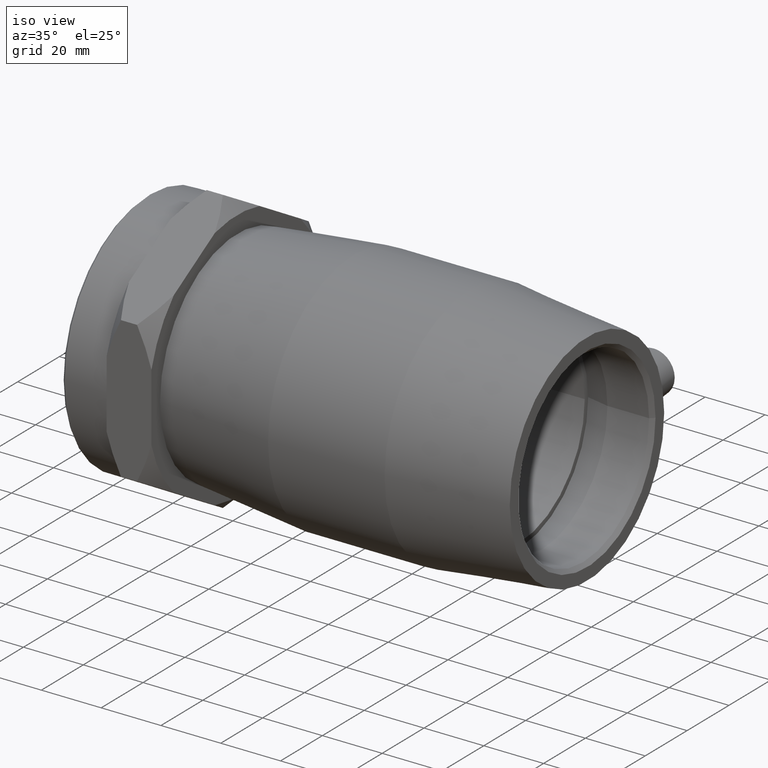
[diagram: clean part render]
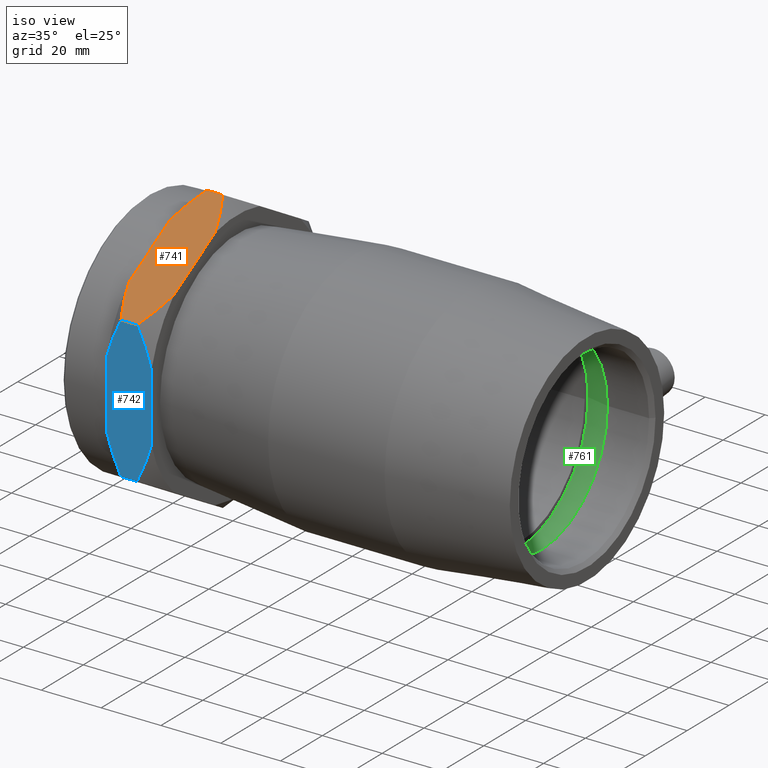
[diagram: same view with three faces highlighted in distinct colors, each labeled with its STEP entity id]
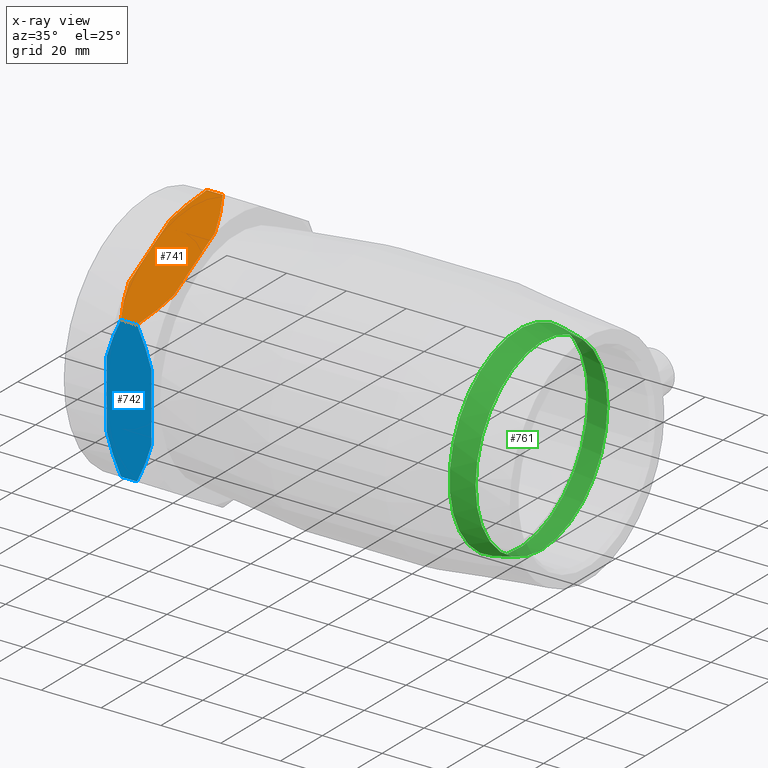
[diagram: x-ray of the same camera — body ghosted, the three highlighted faces saturated]
A machine part, iso view with three faces highlighted in distinct colors.
The next image is the same camera in x-ray (body ghosted, the three faces saturated) — at least one of them is partly hidden behind the body in this view.
Their STEP definitions:

[orange] entity #741 — the highlighted planar face has unit normal (0, -0.5, 0.866).
#22=LINE('',#1270,#46);
#23=LINE('',#1272,#47);
#34=LINE('',#1288,#58);
#37=LINE('',#1292,#61);
#38=LINE('',#1293,#62);
#46=VECTOR('',#974,11.3526737567526);
#47=VECTOR('',#977,11.3526737567526);
#58=VECTOR('',#998,5.40000000000001);
#61=VECTOR('',#1003,5.39999999999999);
#62=VECTOR('',#1004,22.7053475135052);
#67=(
BOUNDED_CURVE()
B_SPLINE_CURVE(2,(#1144,#1145,#1146),.UNSPECIFIED.,.F.,.F.)
B_SPLINE_CURVE_WITH_KNOTS((3,3),(0.,1.32378358968891),.UNSPECIFIED.)
CURVE()
GEOMETRIC_REPRESENTATION_ITEM()
RATIONAL_B_SPLINE_CURVE((1.,1.00952557580621,1.))
REPRESENTATION_ITEM('')
);
#72=(
BOUNDED_CURVE()
B_SPLINE_CURVE(2,(#1170,#1171,#1172),.UNSPECIFIED.,.F.,.F.)
B_SPLINE_CURVE_WITH_KNOTS((3,3),(0.,1.32378358968891),.UNSPECIFIED.)
CURVE()
GEOMETRIC_REPRESENTATION_ITEM()
RATIONAL_B_SPLINE_CURVE((1.,1.00952557580619,1.))
REPRESENTATION_ITEM('')
);
#78=(
BOUNDED_CURVE()
B_SPLINE_CURVE(2,(#1204,#1205,#1206),.UNSPECIFIED.,.F.,.F.)
B_SPLINE_CURVE_WITH_KNOTS((3,3),(0.,1.32378358968891),.UNSPECIFIED.)
CURVE()
GEOMETRIC_REPRESENTATION_ITEM()
RATIONAL_B_SPLINE_CURVE((1.,1.00952557580625,1.))
REPRESENTATION_ITEM('')
);
#79=(
BOUNDED_CURVE()
B_SPLINE_CURVE(2,(#1210,#1211,#1212),.UNSPECIFIED.,.F.,.F.)
B_SPLINE_CURVE_WITH_KNOTS((3,3),(0.,1.3237835896889),.UNSPECIFIED.)
CURVE()
GEOMETRIC_REPRESENTATION_ITEM()
RATIONAL_B_SPLINE_CURVE((1.,1.00952557580623,1.))
REPRESENTATION_ITEM('')
);
#110=PLANE('',#824);
#182=FACE_OUTER_BOUND('',#244,.T.);
#244=EDGE_LOOP('',(#610,#611,#612,#613,#614,#615,#616,#617,#618));
#349=VERTEX_POINT('',#1125);
#354=VERTEX_POINT('',#1142);
#355=VERTEX_POINT('',#1143);
#360=VERTEX_POINT('',#1164);
#362=VERTEX_POINT('',#1169);
#370=VERTEX_POINT('',#1198);
#371=VERTEX_POINT('',#1202);
#372=VERTEX_POINT('',#1208);
#373=VERTEX_POINT('',#1209);
#425=EDGE_CURVE('',#354,#355,#67,.T.);
#432=EDGE_CURVE('',#362,#360,#72,.T.);
#442=EDGE_CURVE('',#370,#371,#78,.T.);
#443=EDGE_CURVE('',#372,#373,#79,.T.);
#463=EDGE_CURVE('',#349,#355,#22,.T.);
#464=EDGE_CURVE('',#362,#349,#23,.T.);
#475=EDGE_CURVE('',#373,#354,#34,.T.);
#478=EDGE_CURVE('',#370,#360,#37,.T.);
#479=EDGE_CURVE('',#371,#372,#38,.T.);
#610=ORIENTED_EDGE('',*,*,#425,.T.);
#611=ORIENTED_EDGE('',*,*,#463,.F.);
#612=ORIENTED_EDGE('',*,*,#464,.F.);
#613=ORIENTED_EDGE('',*,*,#432,.T.);
#614=ORIENTED_EDGE('',*,*,#478,.F.);
#615=ORIENTED_EDGE('',*,*,#442,.T.);
#616=ORIENTED_EDGE('',*,*,#479,.T.);
#617=ORIENTED_EDGE('',*,*,#443,.T.);
#618=ORIENTED_EDGE('',*,*,#475,.T.);
#741=ADVANCED_FACE('',(#182),#110,.T.);
#824=AXIS2_PLACEMENT_3D('',#1291,#1001,#1002);
#974=DIRECTION('',(0.,0.866025403784438,0.500000000000002));
#977=DIRECTION('',(0.,0.866025403784438,0.500000000000002));
#998=DIRECTION('',(-1.,0.,0.));
#1001=DIRECTION('center_axis',(0.,-0.500000000000002,0.866025403784438));
#1002=DIRECTION('ref_axis',(0.,0.866025403784438,0.500000000000001));
#1003=DIRECTION('',(-1.,0.,0.));
#1004=DIRECTION('',(0.,0.866025403784438,0.500000000000002));
#1125=CARTESIAN_POINT('',(-73.5,-20.5000000000001,35.507041555162));
#1142=CARTESIAN_POINT('',(-68.7,0.,47.3427220735493));
#1143=CARTESIAN_POINT('',(-73.5,-10.6682961257754,41.1833784335383));
#1144=CARTESIAN_POINT('Ctrl Pts',(-68.7,-9.58998513862673E-14,47.3427220735493));
#1145=CARTESIAN_POINT('Ctrl Pts',(-71.9441303135502,-5.61899852944334,44.0985917599991));
#1146=CARTESIAN_POINT('Ctrl Pts',(-73.5,-10.6682961257754,41.1833784335383));
#1164=CARTESIAN_POINT('',(-68.7,-41.,23.6713610367746));
#1169=CARTESIAN_POINT('',(-73.5,-30.3317038742247,29.8307046767857));
#1170=CARTESIAN_POINT('Ctrl Pts',(-73.5,-30.3317038742247,29.8307046767856));
#1171=CARTESIAN_POINT('Ctrl Pts',(-71.9441303135502,-35.3810014705568,26.9154913503248));
#1172=CARTESIAN_POINT('Ctrl Pts',(-68.7,-41.,23.6713610367746));
#1198=CARTESIAN_POINT('',(-63.3,-41.,23.6713610367746));
#1202=CARTESIAN_POINT('',(-58.5,-30.3317038742247,29.8307046767857));
#1204=CARTESIAN_POINT('Ctrl Pts',(-63.3,-41.,23.6713610367746));
#1205=CARTESIAN_POINT('Ctrl Pts',(-60.0558696864498,-35.3810014705568,26.9154913503248));
#1206=CARTESIAN_POINT('Ctrl Pts',(-58.5,-30.3317038742247,29.8307046767856));
#1208=CARTESIAN_POINT('',(-58.5,-10.6682961257754,41.1833784335383));
#1209=CARTESIAN_POINT('',(-63.3,0.,47.3427220735493));
#1210=CARTESIAN_POINT('Ctrl Pts',(-58.5,-10.6682961257754,41.1833784335383));
#1211=CARTESIAN_POINT('Ctrl Pts',(-60.0558696864498,-5.61899852944339,44.0985917599991));
#1212=CARTESIAN_POINT('Ctrl Pts',(-63.3,-1.05255934448342E-13,47.3427220735493));
#1270=CARTESIAN_POINT('',(-73.5,-41.,23.6713610367746));
#1272=CARTESIAN_POINT('',(-73.5,-41.,23.6713610367746));
#1288=CARTESIAN_POINT('',(-58.5,-8.81015690508994E-14,47.3427220735493));
#1291=CARTESIAN_POINT('Origin',(-58.5,-41.,23.6713610367746));
#1292=CARTESIAN_POINT('',(-58.5,-41.,23.6713610367746));
#1293=CARTESIAN_POINT('',(-58.5,-41.,23.6713610367746));

[blue] entity #742 — the highlighted planar face has unit normal (0, -1, -0).
#24=LINE('',#1273,#48);
#27=LINE('',#1277,#51);
#33=LINE('',#1286,#57);
#37=LINE('',#1292,#61);
#39=LINE('',#1295,#63);
#48=VECTOR('',#978,11.3526737567526);
#51=VECTOR('',#983,5.39999999999999);
#57=VECTOR('',#995,11.3526737567526);
#61=VECTOR('',#1003,5.39999999999999);
#63=VECTOR('',#1007,22.7053475135052);
#71=(
BOUNDED_CURVE()
B_SPLINE_CURVE(2,(#1166,#1167,#1168),.UNSPECIFIED.,.F.,.F.)
B_SPLINE_CURVE_WITH_KNOTS((3,3),(0.,1.3237835896889),.UNSPECIFIED.)
CURVE()
GEOMETRIC_REPRESENTATION_ITEM()
RATIONAL_B_SPLINE_CURVE((1.,1.00952557580623,1.))
REPRESENTATION_ITEM('')
);
#73=(
BOUNDED_CURVE()
B_SPLINE_CURVE(2,(#1177,#1178,#1179),.UNSPECIFIED.,.F.,.F.)
B_SPLINE_CURVE_WITH_KNOTS((3,3),(0.,1.3237835896889),.UNSPECIFIED.)
CURVE()
GEOMETRIC_REPRESENTATION_ITEM()
RATIONAL_B_SPLINE_CURVE((1.,1.00952557580626,1.))
REPRESENTATION_ITEM('')
);
#77=(
BOUNDED_CURVE()
B_SPLINE_CURVE(2,(#1199,#1200,#1201),.UNSPECIFIED.,.F.,.F.)
B_SPLINE_CURVE_WITH_KNOTS((3,3),(0.,1.32378358968891),.UNSPECIFIED.)
CURVE()
GEOMETRIC_REPRESENTATION_ITEM()
RATIONAL_B_SPLINE_CURVE((1.,1.0095255758062,1.))
REPRESENTATION_ITEM('')
);
#83=(
BOUNDED_CURVE()
B_SPLINE_CURVE(2,(#1232,#1233,#1234),.UNSPECIFIED.,.F.,.F.)
B_SPLINE_CURVE_WITH_KNOTS((3,3),(0.,1.32378358968891),.UNSPECIFIED.)
CURVE()
GEOMETRIC_REPRESENTATION_ITEM()
RATIONAL_B_SPLINE_CURVE((1.,1.00952557580625,1.))
REPRESENTATION_ITEM('')
);
#111=PLANE('',#825);
#183=FACE_OUTER_BOUND('',#245,.T.);
#245=EDGE_LOOP('',(#619,#620,#621,#622,#623,#624,#625,#626,#627));
#348=VERTEX_POINT('',#1123);
#360=VERTEX_POINT('',#1164);
#361=VERTEX_POINT('',#1165);
#363=VERTEX_POINT('',#1175);
#364=VERTEX_POINT('',#1176);
#369=VERTEX_POINT('',#1197);
#370=VERTEX_POINT('',#1198);
#378=VERTEX_POINT('',#1230);
#379=VERTEX_POINT('',#1231);
#431=EDGE_CURVE('',#360,#361,#71,.T.);
#434=EDGE_CURVE('',#363,#364,#73,.T.);
#440=EDGE_CURVE('',#369,#370,#77,.T.);
#449=EDGE_CURVE('',#378,#379,#83,.T.);
#465=EDGE_CURVE('',#348,#361,#24,.T.);
#468=EDGE_CURVE('',#378,#364,#27,.T.);
#474=EDGE_CURVE('',#363,#348,#33,.T.);
#478=EDGE_CURVE('',#370,#360,#37,.T.);
#480=EDGE_CURVE('',#379,#369,#39,.T.);
#619=ORIENTED_EDGE('',*,*,#434,.T.);
#620=ORIENTED_EDGE('',*,*,#468,.F.);
#621=ORIENTED_EDGE('',*,*,#449,.T.);
#622=ORIENTED_EDGE('',*,*,#480,.T.);
#623=ORIENTED_EDGE('',*,*,#440,.T.);
#624=ORIENTED_EDGE('',*,*,#478,.T.);
#625=ORIENTED_EDGE('',*,*,#431,.T.);
#626=ORIENTED_EDGE('',*,*,#465,.F.);
#627=ORIENTED_EDGE('',*,*,#474,.F.);
#742=ADVANCED_FACE('',(#183),#111,.T.);
#825=AXIS2_PLACEMENT_3D('',#1294,#1005,#1006);
#978=DIRECTION('',(0.,-1.5008489259579E-15,1.));
#983=DIRECTION('',(-1.,0.,0.));
#995=DIRECTION('',(0.,-1.5008489259579E-15,1.));
#1003=DIRECTION('',(-1.,0.,0.));
#1005=DIRECTION('center_axis',(0.,-1.,-1.5008489259579E-15));
#1006=DIRECTION('ref_axis',(0.,-1.4210854715202E-15,1.));
#1007=DIRECTION('',(0.,-1.5008489259579E-15,1.));
#1123=CARTESIAN_POINT('',(-73.5,-41.,-6.21724893790088E-14));
#1164=CARTESIAN_POINT('',(-68.7,-41.,23.6713610367746));
#1165=CARTESIAN_POINT('',(-73.5,-41.,11.3526737567526));
#1166=CARTESIAN_POINT('Ctrl Pts',(-68.7,-41.,23.6713610367746));
#1167=CARTESIAN_POINT('Ctrl Pts',(-71.9441303135502,-41.,17.1831004096742));
#1168=CARTESIAN_POINT('Ctrl Pts',(-73.5,-41.,11.3526737567526));
#1175=CARTESIAN_POINT('',(-73.5,-41.,-11.3526737567527));
#1176=CARTESIAN_POINT('',(-68.7,-41.,-23.6713610367747));
#1177=CARTESIAN_POINT('Ctrl Pts',(-73.5,-41.,-11.3526737567527));
#1178=CARTESIAN_POINT('Ctrl Pts',(-71.9441303135502,-41.,-17.1831004096743));
#1179=CARTESIAN_POINT('Ctrl Pts',(-68.7,-41.,-23.6713610367747));
#1197=CARTESIAN_POINT('',(-58.5,-41.,11.3526737567526));
#1198=CARTESIAN_POINT('',(-63.3,-41.,23.6713610367746));
#1199=CARTESIAN_POINT('Ctrl Pts',(-58.5,-41.,11.3526737567525));
#1200=CARTESIAN_POINT('Ctrl Pts',(-60.0558696864498,-41.,17.1831004096742));
#1201=CARTESIAN_POINT('Ctrl Pts',(-63.3,-41.,23.6713610367746));
#1230=CARTESIAN_POINT('',(-63.3,-41.,-23.6713610367747));
#1231=CARTESIAN_POINT('',(-58.5,-41.,-11.3526737567527));
#1232=CARTESIAN_POINT('Ctrl Pts',(-63.3,-41.,-23.6713610367747));
#1233=CARTESIAN_POINT('Ctrl Pts',(-60.0558696864498,-41.,-17.1831004096743));
#1234=CARTESIAN_POINT('Ctrl Pts',(-58.5,-41.,-11.3526737567527));
#1273=CARTESIAN_POINT('',(-73.5,-41.,-23.6713610367747));
#1277=CARTESIAN_POINT('',(-58.5,-41.,-23.6713610367747));
#1286=CARTESIAN_POINT('',(-73.5,-41.,-23.6713610367747));
#1292=CARTESIAN_POINT('',(-58.5,-41.,23.6713610367746));
#1294=CARTESIAN_POINT('Origin',(-58.5,-41.,-23.6713610367747));
#1295=CARTESIAN_POINT('',(-58.5,-41.,-23.6713610367747));

[green] entity #761 — the highlighted conical surface has half-angle 12 deg.
#147=FACE_BOUND('',#281,.T.);
#202=FACE_OUTER_BOUND('',#280,.T.);
#280=EDGE_LOOP('',(#681));
#281=EDGE_LOOP('',(#682));
#294=CIRCLE('',#774,31.5);
#333=CIRCLE('',#860,33.1154298686922);
#339=VERTEX_POINT('',#1101);
#404=VERTEX_POINT('',#1416);
#410=EDGE_CURVE('',#339,#339,#294,.T.);
#499=EDGE_CURVE('',#404,#404,#333,.T.);
#681=ORIENTED_EDGE('',*,*,#499,.F.);
#682=ORIENTED_EDGE('',*,*,#410,.T.);
#710=CONICAL_SURFACE('',#859,32.3077149343461,12.);
#761=ADVANCED_FACE('',(#202,#147),#710,.F.);
#774=AXIS2_PLACEMENT_3D('',#1102,#881,#882);
#859=AXIS2_PLACEMENT_3D('',#1415,#1075,#1076);
#860=AXIS2_PLACEMENT_3D('',#1417,#1077,#1078);
#881=DIRECTION('center_axis',(1.,0.,0.));
#882=DIRECTION('ref_axis',(0.,0.,-1.));
#1075=DIRECTION('center_axis',(-1.,0.,0.));
#1076=DIRECTION('ref_axis',(0.,1.,0.));
#1077=DIRECTION('center_axis',(1.,0.,0.));
#1078=DIRECTION('ref_axis',(0.,0.,-1.));
#1101=CARTESIAN_POINT('',(43.3,31.5,0.));
#1102=CARTESIAN_POINT('Origin',(43.3,0.,0.));
#1415=CARTESIAN_POINT('Origin',(39.5,0.,0.));
#1416=CARTESIAN_POINT('',(35.7,33.1154298686922,0.));
#1417=CARTESIAN_POINT('Origin',(35.7,0.,0.));